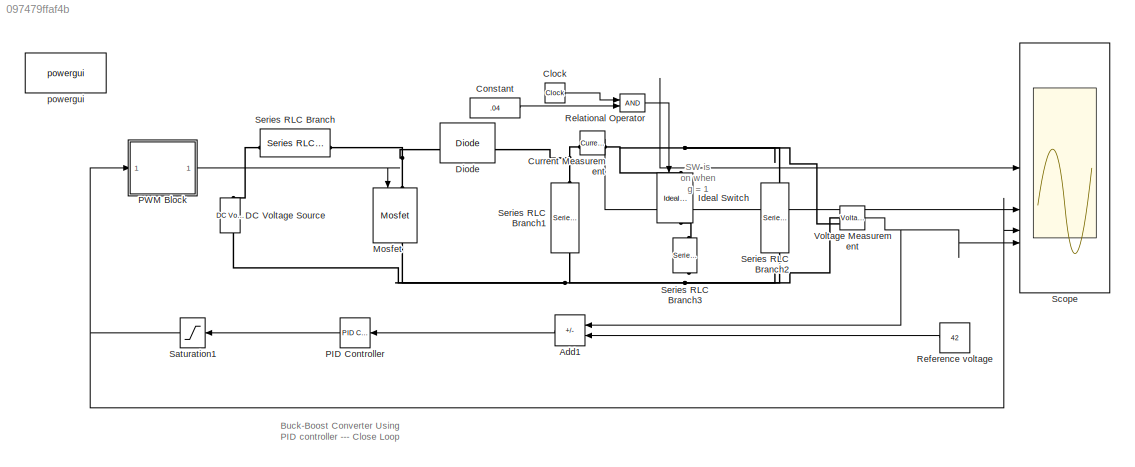
MODEL slx_097479ffaf4b
KIND model
CONFIG AbsTol = auto
CONFIG EnableMultiTasking = on
CONFIG FixedStep = auto
CONFIG MaxStep = auto
CONFIG MinStep = auto
CONFIG RelTol = 1e-6
CONFIG SampleTimeConstraint = Unconstrained
CONFIG SolverName = ode23tb
CONFIG StartTime = 0.0
CONFIG StopTime = 0.1
BLOCK [Sum] Add1
  IconShape = rectangular
  Inputs = -+
  NameLocation = top
BLOCK [Clock] Clock
  NameLocation = top
BLOCK [Constant] Constant
  Value = .04
BLOCK [Reference] Current Measurement  REF=spsCurrentMeasurementLib/Current Measurement
  LibrarySourceBlock = sps_lib/Sensors and Measurements/Current Measurement
  SourceBlock = spsCurrentMeasurementLib/Current Measurement
  SourceType = Current Measurement
BLOCK [Reference] DC Voltage Source  REF=spsDCVoltageSourceLib/DC Voltage Source
  LibrarySourceBlock = sps_lib/Sources/DC Voltage Source
  NameLocation = right
  SourceBlock = spsDCVoltageSourceLib/DC Voltage Source
  SourceType = DC Voltage Source
BLOCK [Reference] Diode  REF=spsDiodeLib/Diode
  LibrarySourceBlock = sps_lib/Power Electronics/Diode
  SourceBlock = spsDiodeLib/Diode
  SourceType = Diode
BLOCK [Reference] Ideal Switch  REF=spsIdealSwitchLib/Ideal Switch
  LibrarySourceBlock = sps_lib/Power Electronics/Ideal Switch
  NameLocation = left
  SourceBlock = spsIdealSwitchLib/Ideal Switch
  SourceType = Ideal Switch
BLOCK [Reference] Mosfet  REF=spsMosfetLib/Mosfet
  LibrarySourceBlock = sps_lib/Power Electronics/Mosfet
  NameLocation = left
  SourceBlock = spsMosfetLib/Mosfet
  SourceType = Mosfet
BLOCK [Reference] PID Controller  REF=simulink_need_slupdate/PID Controller
  NameLocation = top
  SourceBlock = simulink_need_slupdate/PID Controller
  SourceType = PID Controller
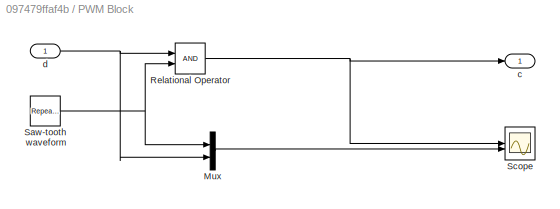
BLOCK [SubSystem] PWM Block
BLOCK [Mux] PWM Block/Mux
  DisplayOption = bar
  Inputs = 2
BLOCK [RelationalOperator] PWM Block/Relational Operator
  InputSameDT = off
  OutDataTypeStr = boolean
BLOCK [Reference] PWM Block/Saw-tooth waveform  REF=simulink/Sources/Repeating
Sequence
  SourceBlock = simulink/Sources/Repeating\nSequence
  SourceType = Repeating table
BLOCK [Scope] PWM Block/Scope
  Floating = off
  NumInputPorts = 2
  ScopeSpecificationString = C++SS(StrPVP('Location','[5, 48, 1605, 859]'),StrPVP('Open','off'),StrPVP('ZoomMode','xonly'),MxPVP('AxesTitles',54,'struct(''axes1'',''%<SignalLabel>'',''axes2'',''%<SignalLabel>'')'),StrPVP('YMin','-1~0'),StrPVP('YMax','5~1'),StrPVP('DataFormat','StructureWithTime'),StrPVP('MaxDataPoints','5000000'),StrPVP('BlockParamSampleInput','on'),StrPVP('BlockParamSampleTime','1e-6'),StrPVP('LimitDataPoint...<+34ch>
BLOCK [Outport] PWM Block/c
  VectorParamsAs1DForOutWhenUnconnected = off
BLOCK [Inport] PWM Block/d
BLOCK [Constant] Reference voltage 
  Value = 42
BLOCK [RelationalOperator] Relational Operator
  InputSameDT = off
  OutDataTypeStr = boolean
BLOCK [Saturate] Saturation1
  LowerLimit = 0
  UpperLimit = 0.99
BLOCK [Scope] Scope
  Floating = off
  NumInputPorts = 4
  ScopeSpecificationString = Simulink.scopes.TimeScopeBlockCfg('CurrentConfiguration', extmgr.ConfigurationSet(extmgr.Configuration('Core','General UI',true),extmgr.Configuration('Core','Source UI',true),extmgr.Configuration('Sources','WiredSimulink',true,'DataLoggingVariableName','ScopeData2','DataLoggingSaveFormat','StructureWithTime','DataLoggingMaxPoints','5000000','DataLoggingDecimation','1','DataLoggingDecimateData',tru...<+3703ch>
BLOCK [Reference] Series RLC Branch  REF=spsSeriesRLCBranchLib/Series RLC Branch
  LibrarySourceBlock = sps_lib/Passives/Series RLC Branch
  SourceBlock = spsSeriesRLCBranchLib/Series RLC Branch
  SourceType = Series RLC Branch
BLOCK [Reference] Series RLC Branch1  REF=spsSeriesRLCBranchLib/Series RLC Branch
  LibrarySourceBlock = sps_lib/Passives/Series RLC Branch
  NameLocation = left
  SourceBlock = spsSeriesRLCBranchLib/Series RLC Branch
  SourceType = Series RLC Branch
BLOCK [Reference] Series RLC Branch2  REF=spsSeriesRLCBranchLib/Series RLC Branch
  LibrarySourceBlock = sps_lib/Passives/Series RLC Branch
  NameLocation = left
  SourceBlock = spsSeriesRLCBranchLib/Series RLC Branch
  SourceType = Series RLC Branch
BLOCK [Reference] Series RLC Branch3  REF=spsSeriesRLCBranchLib/Series RLC Branch
  LibrarySourceBlock = sps_lib/Passives/Series RLC Branch
  NameLocation = left
  SourceBlock = spsSeriesRLCBranchLib/Series RLC Branch
  SourceType = Series RLC Branch
BLOCK [Reference] Voltage Measurement  REF=spsVoltageMeasurementLib/Voltage Measurement
  LibrarySourceBlock = sps_lib/Sensors and Measurements/Voltage Measurement
  SourceBlock = spsVoltageMeasurementLib/Voltage Measurement
  SourceType = Voltage Measurement
BLOCK [Reference] powergui  REF=sps_lib/powergui
  Priority = 1
  SourceBlock = sps_lib/powergui
  SourceType = PSB option menu block
ANNOTATION (root): Buck-Boost Converter Using PID controller --- Close Loop
ANNOTATION (root): SW is on when g = 1
LINE Add1:1 -> PID Controller:1
LINE Clock:1 -> Relational Operator:1
LINE Constant:1 -> Relational Operator:2
LINE Current Measurement:1 -> Scope:2
LINE PID Controller:1 -> Saturation1:1
LINE PWM Block/Mux:1 -> PWM Block/Scope:2
NET PWM Block/Relational Operator:1 -> PWM Block/Scope:1, PWM Block/c:1
NET PWM Block/Saw-tooth waveform:1 -> PWM Block/Mux:1, PWM Block/Relational Operator:2
NET PWM Block/d:1 -> PWM Block/Mux:2, PWM Block/Relational Operator:1
LINE PWM Block:1 -> Mosfet:1
LINE Reference voltage :1 -> Add1:2
NET Relational Operator:1 -> Ideal Switch:1, Scope:1
NET Saturation1:1 -> PWM Block:1, Scope:3
NET Voltage Measurement:1 -> Add1:1, Scope:4
PNET net1: Current Measurement:LConn1 -- Diode:RConn1 -- Series RLC Branch1:LConn1
PNET net2: Current Measurement:RConn1 -- Ideal Switch:LConn1 -- Series RLC Branch2:RConn1 -- Voltage Measurement:LConn2
PNET net3: DC Voltage Source:LConn1 -- Mosfet:RConn1 -- Series RLC Branch1:RConn1 -- Series RLC Branch2:LConn1 -- Series RLC Branch3:RConn1 -- Voltage Measurement:LConn1
PLINE DC Voltage Source:RConn1 -- Series RLC Branch:LConn1
PNET net4: Diode:LConn1 -- Mosfet:LConn1 -- Series RLC Branch:RConn1
PLINE Ideal Switch:RConn1 -- Series RLC Branch3:LConn1
note: NET lines group one-source signal fan-out (src -> all destinations, sorted); 1:1 wires keep LINE; PNET lines group multi-terminal physical nets as a canonical sorted terminal list (undirected conserving connections); 2-terminal nets keep the pairwise PLINE form
